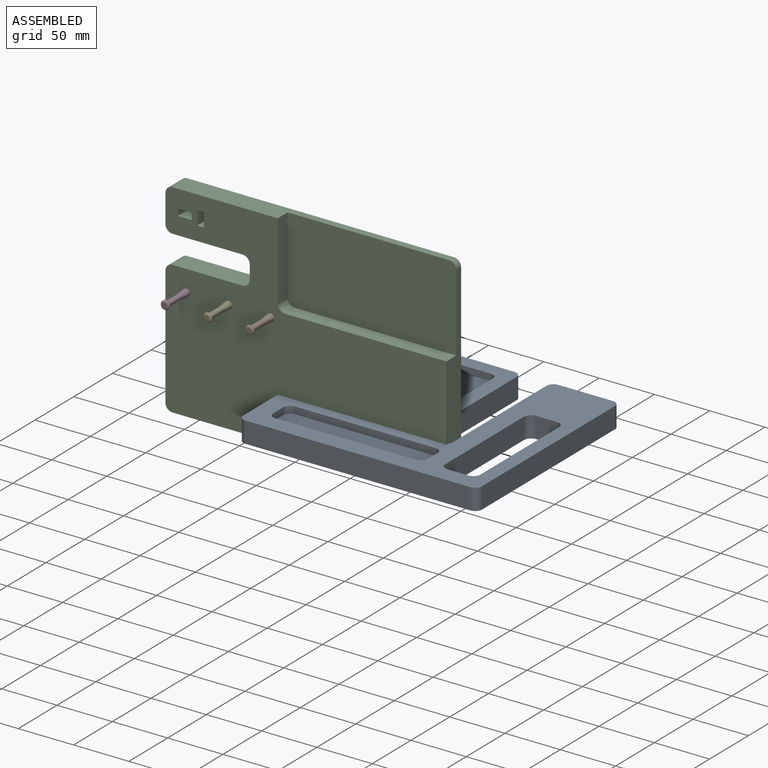
[diagram: assembled view]
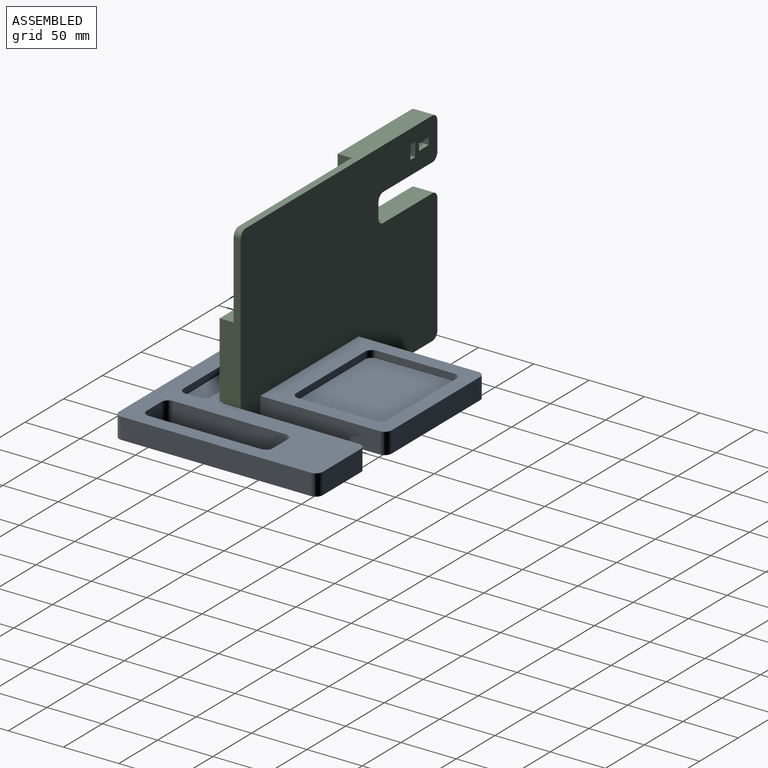
[diagram: assembled view, second angle]
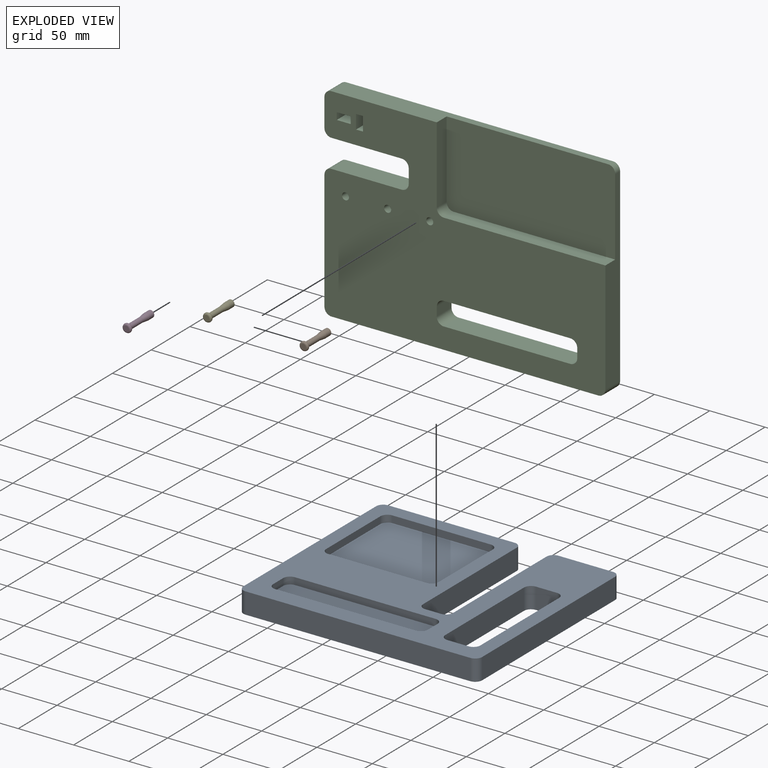
[diagram: exploded view]
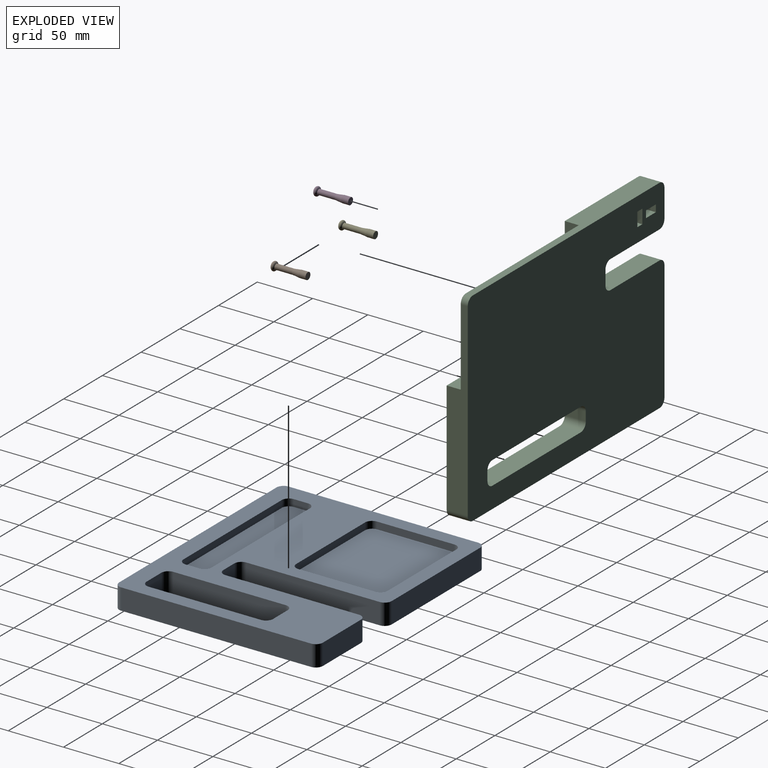
[diagram: exploded view, second angle]
ASSEMBLY  parts=5 mates=2
PART A: 44 faces, bbox 215.9x184.2x19.1 mm
  f0: plane 215.9x184.15mm, normal (0,0,1), area 20663.9mm2, adj f1,f2,f3,f4,f5,f6,f7,f8
  f1: plane 120.65x19.05mm, normal (1,0,0), area 2298.4mm2, adj f0,f13,f36,f43
  f2: plane 114.3x19.05mm, normal (0,1,0), area 2177.4mm2, adj f0,f13,f36,f37
  f3: plane 171.45x19.05mm, normal (-1,0,0), area 3266.1mm2, adj f0,f13,f37,f38
  f4: plane 203.2x19.05mm, normal (0,-1,0), area 3871mm2, adj f0,f13,f38,f39
  f5: plane 171.45x19.05mm, normal (1,0,0), area 3266.1mm2, adj f0,f13,f39,f40
  f6: plane 49.21x19.05mm, normal (0,1,0), area 937.5mm2, adj f0,f13,f40,f41
  f7: plane 120.65x19.05mm, normal (-1,0,0), area 2298.4mm2, adj f0,f13,f41,f42
  f8: plane 101.6x19.05mm, normal (-1,0,0), area 1935.5mm2, adj f0,f13,f32,f35
  f9: plane 19.05x19.05mm, normal (0,1,0), area 362.9mm2, adj f0,f13,f32,f33
  f10: plane 101.6x19.05mm, normal (1,0,0), area 1935.5mm2, adj f0,f13,f33,f34
  f11: plane 19.05x19.05mm, normal (0,-1,0), area 362.9mm2, adj f0,f13,f34,f35
  f12: plane 19.05x14.29mm, normal (0,1,0), area 272.2mm2, adj f0,f13,f42,f43
  f13: plane 215.9x184.15mm, normal (0,0,-1), area 32530.2mm2, adj f1,f2,f3,f4,f5,f6,f7,f8
  f14: plane 88.9x6.35mm, normal (0,-1,0), area 564.5mm2, adj f0,f18,f24,f27
  f15: plane 69.85x6.35mm, normal (1,0,0), area 443.5mm2, adj f0,f18,f24,f25
  f16: plane 88.9x6.35mm, normal (0,1,0), area 564.5mm2, adj f0,f18,f25,f26
  f17: plane 69.85x6.35mm, normal (-1,0,0), area 443.5mm2, adj f0,f18,f26,f27
  f18: plane 101.6x82.55mm, normal (0,0,1), area 8352.5mm2, adj f14,f15,f16,f17,f24,f25,f26,f27
  f19: plane 127x6.35mm, normal (0,-1,0), area 806.5mm2, adj f0,f23,f28,f31
  f20: plane 12.7x6.35mm, normal (1,0,0), area 80.6mm2, adj f0,f23,f30,f31
  f21: plane 127x6.35mm, normal (0,1,0), area 806.5mm2, adj f0,f23,f29,f30
  f22: plane 12.7x6.35mm, normal (-1,0,0), area 80.6mm2, adj f0,f23,f28,f29
  f23: plane 139.7x25.4mm, normal (0,0,1), area 3513.8mm2, adj f19,f20,f21,f22,f28,f29,f30,f31
  f24: cylinder r=6.35mm len=6.35mm, axis (0,0,1), area 63.3mm2, adj f0,f14,f15,f18
  f25: cylinder r=6.35mm len=6.35mm, axis (0,0,-1), area 63.3mm2, adj f0,f15,f16,f18
  f26: cylinder r=6.35mm len=6.35mm, axis (0,0,1), area 63.3mm2, adj f0,f16,f17,f18
  f27: cylinder r=6.35mm len=6.35mm, axis (0,0,-1), area 63.3mm2, adj f0,f14,f17,f18
  f28: cylinder r=6.35mm len=6.35mm, axis (0,0,-1), area 63.3mm2, adj f0,f19,f22,f23
  f29: cylinder r=6.35mm len=6.35mm, axis (0,0,1), area 63.3mm2, adj f0,f21,f22,f23
  f30: cylinder r=6.35mm len=6.35mm, axis (0,0,-1), area 63.3mm2, adj f0,f20,f21,f23
  f31: cylinder r=6.35mm len=6.35mm, axis (0,0,1), area 63.3mm2, adj f0,f19,f20,f23
  f32: cylinder r=6.35mm len=19.05mm, axis (0,0,1), area 190mm2, adj f0,f8,f9,f13
  f33: cylinder r=6.35mm len=19.05mm, axis (0,0,-1), area 190mm2, adj f0,f9,f10,f13
  f34: cylinder r=6.35mm len=19.05mm, axis (0,0,1), area 190mm2, adj f0,f10,f11,f13
  f35: cylinder r=6.35mm len=19.05mm, axis (0,0,-1), area 190mm2, adj f0,f8,f11,f13
  f36: cylinder r=6.35mm len=19.05mm, axis (0,0,-1), area 190mm2, adj f0,f1,f2,f13
  f37: cylinder r=6.35mm len=19.05mm, axis (0,0,1), area 190mm2, adj f0,f2,f3,f13
  f38: cylinder r=6.35mm len=19.05mm, axis (0,0,-1), area 190mm2, adj f0,f3,f4,f13
  f39: cylinder r=6.35mm len=19.05mm, axis (0,0,1), area 190mm2, adj f0,f4,f5,f13
  f40: cylinder r=6.35mm len=19.05mm, axis (0,0,-1), area 190mm2, adj f0,f5,f6,f13
  f41: cylinder r=6.35mm len=19.05mm, axis (0,0,1), area 190mm2, adj f0,f6,f7,f13
  f42: cylinder r=6.35mm len=19.05mm, axis (0,0,1), area 190mm2, adj f0,f7,f12,f13
  f43: cylinder r=6.35mm len=19.05mm, axis (0,0,-1), area 190mm2, adj f0,f1,f12,f13
PART B: 6 faces, bbox 8.6x31.8x8.6 mm
  f0: plane 6.35x6.35mm, normal (0,1,0), area 31.7mm2, adj f1
  f1: cylinder r=3.17mm len=6.35mm, axis (0,1,0), area 126.7mm2, adj f0,f2
  f2: cone r=3.17mm half-angle=7.2deg, axis (0,1,0), area 110.8mm2, adj f1,f3
  f3: cylinder r=2.38mm len=15.93mm, axis (0,1,0), area 238.3mm2, adj f2,f4
  f4: torus R=2.38mm, axis (0,1,0), area 106.3mm2, adj f3,f5
  f5: plane 4.76x4.76mm, normal (0,-1,0), area 17.8mm2, adj f4
PART C: 44 faces, bbox 254x19.1x184.2 mm
  f0: plane 171.45x19.05mm, normal (1,0,0), area 2379mm2, adj f1,f21,f22,f24,f32,f37
  f1: plane 254x184.15mm, normal (0,-1,0), area 30325.5mm2, adj f0,f2,f3,f4,f5,f6,f7,f8
  f2: plane 114.3x19.05mm, normal (0,0,-1), area 2177.4mm2, adj f1,f21,f33,f36
  f3: plane 19.05x8.26mm, normal (-1,0,0), area 157.3mm2, adj f1,f21,f33,f34
  f4: plane 114.3x19.05mm, normal (0,0,1), area 2177.4mm2, adj f1,f21,f34,f35
  f5: plane 241.3x19.05mm, normal (0,0,1), area 2741.9mm2, adj f1,f21,f23,f24,f26,f37
  f6: plane 25.4x19.05mm, normal (-1,0,0), area 483.9mm2, adj f1,f21,f26,f27
  f7: plane 63.5x19.05mm, normal (0,0,-1), area 1209.7mm2, adj f1,f21,f27,f28
  f8: plane 19.05x12.7mm, normal (-1,0,0), area 241.9mm2, adj f1,f21,f28,f29
  f9: plane 63.5x19.05mm, normal (0,0,1), area 1209.7mm2, adj f1,f21,f29,f30
  f10: plane 107.95x19.05mm, normal (-1,0,0), area 2056.4mm2, adj f1,f21,f30,f31
  f11: plane 19.05x12.7mm, normal (1,0,0), area 241.9mm2, adj f1,f12,f18,f21
  f12: plane 19.05x6.35mm, normal (0,0,-1), area 121mm2, adj f1,f11,f13,f21
  f13: plane 19.05x12.7mm, normal (-1,0,0), area 241.9mm2, adj f1,f12,f18,f21
  f14: plane 19.05x6.35mm, normal (1,0,0), area 121mm2, adj f1,f15,f19,f21
  f15: plane 19.05x12.7mm, normal (0,0,-1), area 241.9mm2, adj f1,f14,f16,f21
  f16: plane 19.05x6.35mm, normal (-1,0,0), area 121mm2, adj f1,f15,f19,f21
  f17: plane 241.3x19.05mm, normal (0,0,-1), area 4596.8mm2, adj f1,f21,f31,f32
  f18: plane 19.05x6.35mm, normal (0,0,1), area 121mm2, adj f1,f11,f13,f21
  f19: plane 19.05x12.7mm, normal (0,0,1), area 241.9mm2, adj f1,f14,f16,f21
  f20: plane 19.05x8.26mm, normal (1,0,0), area 157.3mm2, adj f1,f21,f35,f36
  f21: plane 254x184.15mm, normal (0,1,0), area 42016mm2, adj f0,f2,f3,f4,f5,f6,f7,f8
  f22: plane 146.05x12.7mm, normal (0,0,1), area 1854.8mm2, adj f0,f1,f24,f25
  f23: plane 69.85x12.7mm, normal (1,0,0), area 887.1mm2, adj f1,f5,f24,f25
  f24: plane 152.4x76.2mm, normal (0,-1,0), area 11595.6mm2, adj f0,f5,f22,f23,f25,f37
  f25: cylinder r=6.35mm len=12.7mm, axis (0,-1,0), area 126.7mm2, adj f1,f22,f23,f24
  f26: cylinder r=6.35mm len=19.05mm, axis (0,1,0), area 190mm2, adj f1,f5,f6,f21
  f27: cylinder r=6.35mm len=19.05mm, axis (0,1,0), area 190mm2, adj f1,f6,f7,f21
  f28: cylinder r=6.35mm len=19.05mm, axis (0,1,0), area 190mm2, adj f1,f7,f8,f21
  f29: cylinder r=6.35mm len=19.05mm, axis (0,-1,0), area 190mm2, adj f1,f8,f9,f21
  f30: cylinder r=6.35mm len=19.05mm, axis (0,-1,0), area 190mm2, adj f1,f9,f10,f21
  f31: cylinder r=6.35mm len=19.05mm, axis (0,-1,0), area 190mm2, adj f1,f10,f17,f21
  f32: cylinder r=6.35mm len=19.05mm, axis (0,1,0), area 190mm2, adj f0,f1,f17,f21
  f33: cylinder r=6.35mm len=19.05mm, axis (0,-1,0), area 190mm2, adj f1,f2,f3,f21
  f34: cylinder r=6.35mm len=19.05mm, axis (0,1,0), area 190mm2, adj f1,f3,f4,f21
  f35: cylinder r=6.35mm len=19.05mm, axis (0,-1,0), area 190mm2, adj f1,f4,f20,f21
  f36: cylinder r=6.35mm len=19.05mm, axis (0,1,0), area 190mm2, adj f1,f2,f20,f21
  f37: cylinder r=6.35mm len=6.35mm, axis (0,-1,0), area 63.3mm2, adj f0,f5,f21,f24
  f38: cone r=0mm half-angle=59deg, axis (0,-1,0), area 36.9mm2, adj f39
  f39: cylinder r=3.17mm len=6.35mm, axis (0,-1,0), area 126.7mm2, adj f1,f38
  f40: cone r=0mm half-angle=59deg, axis (0,-1,0), area 36.9mm2, adj f41
  f41: cylinder r=3.17mm len=6.35mm, axis (0,-1,0), area 126.7mm2, adj f1,f40
  f42: cone r=0mm half-angle=59deg, axis (0,-1,0), area 36.9mm2, adj f43
  f43: cylinder r=3.17mm len=6.35mm, axis (0,-1,0), area 126.7mm2, adj f1,f42
PART D: same geometry as B
PART E: same geometry as B
PLACE A t=(82.55,41.28,-52.07)mm
PLACE B t=(-31.75,-12.7,9.52)mm
PLACE C at identity fixed
PLACE D t=(-107.95,-12.7,9.52)mm
PLACE E t=(-69.85,-12.7,9.52)mm
MATE fastened A.f0 <-> C.f2  axis (0,0,1) through (38.1,133.35,-52.07)mm
MATE fastened D.f2 <-> C.f38  axis (0,1,0) through (-107.95,3.17,9.52)mm
